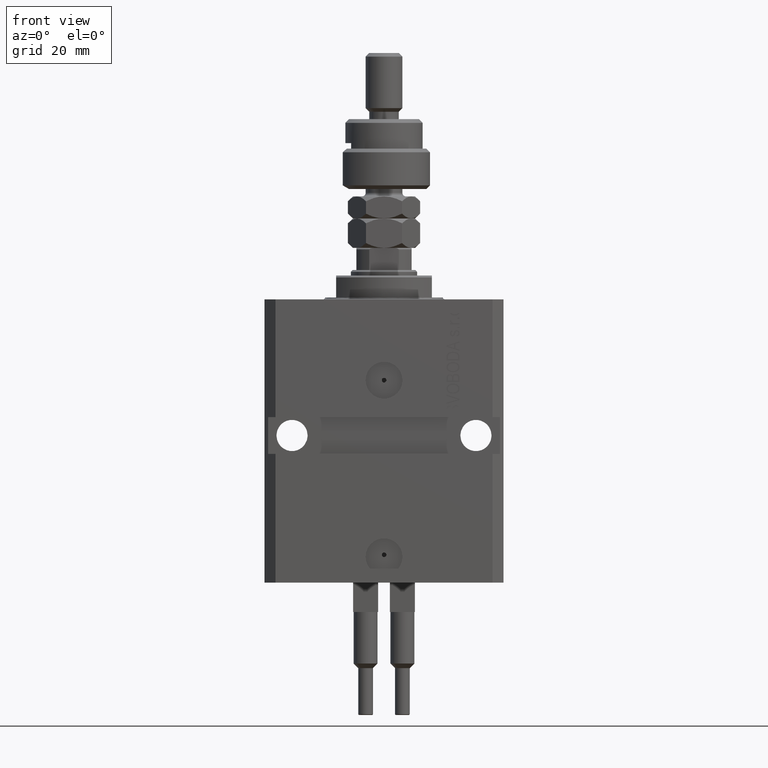
[diagram: clean part render]
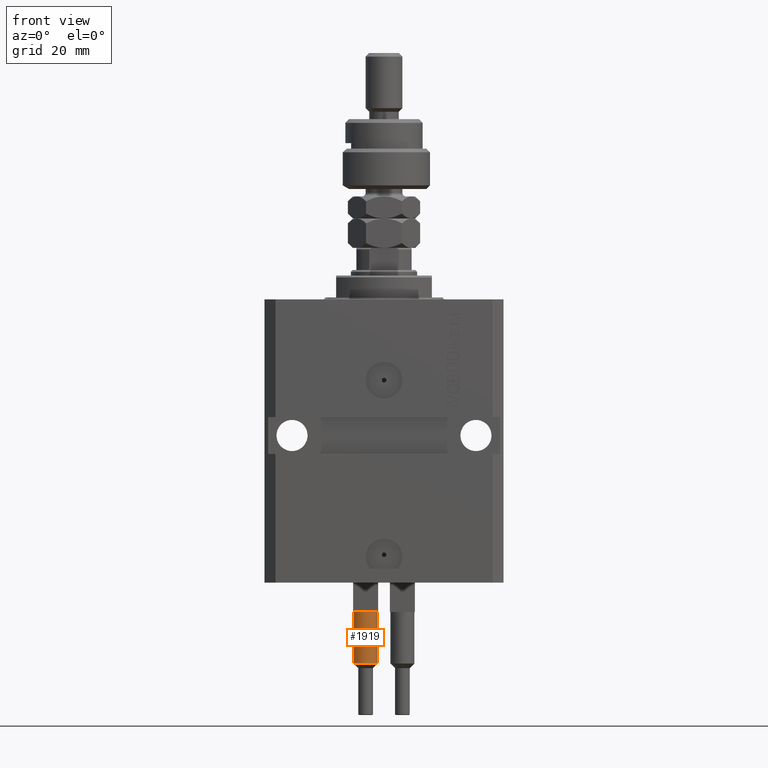
[diagram: same view with one face highlighted and labeled with its STEP entity id]
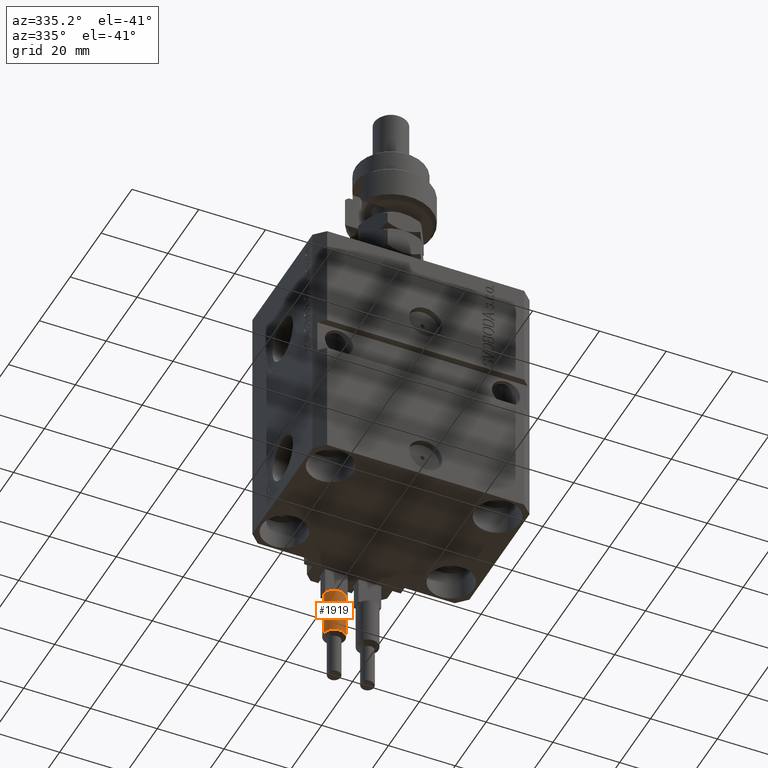
[diagram: same view with one face highlighted and labeled with its STEP entity id]
A machine part, front view. The second image highlights one B-rep face of the part: STEP entity #1919.
A second angle (auxiliary view) of the same face is appended — the face is thin or edge-on in the first view.
In plain terms, the highlighted cylindrical surface (edge-blend (fillet) strip) has radius 3.25 mm, axis along (0, 0, 1).
Its self-contained STEP definition (entity closure, byte-faithful):
#205 = CIRCLE ( 'NONE', #39600, 3.250000000000000444 ) ;
#251 = EDGE_LOOP ( 'NONE', ( #35237, #37138, #12345, #12083, #27272, #25750 ) ) ;
#694 = EDGE_CURVE ( 'NONE', #37300, #49801, #22396, .T. ) ;
#1270 = AXIS2_PLACEMENT_3D ( 'NONE', #18251, #49546, #41594 ) ;
#1919 = ADVANCED_FACE ( 'NONE', ( #41523 ), #11190, .T. ) ;
#2982 = DIRECTION ( 'NONE',  ( -1.000000000000000000, 0.000000000000000000, 0.000000000000000000 ) ) ;
#6552 = CARTESIAN_POINT ( 'NONE',  ( -2.883140648667699146, -1.500000000000000000, 40.00000000000000000 ) ) ;
#6797 = DIRECTION ( 'NONE',  ( 0.000000000000000000, 0.000000000000000000, -1.000000000000000000 ) ) ;
#6890 = LINE ( 'NONE', #38497, #12665 ) ;
#8126 = CARTESIAN_POINT ( 'NONE',  ( 0.000000000000000000, 0.000000000000000000, 40.00000000000000000 ) ) ;
#9441 = VERTEX_POINT ( 'NONE', #47124 ) ;
#10010 = VERTEX_POINT ( 'NONE', #26510 ) ;
#10664 = CARTESIAN_POINT ( 'NONE',  ( 0.000000000000000000, 0.000000000000000000, 53.99999999999998579 ) ) ;
#11190 = CYLINDRICAL_SURFACE ( 'NONE', #24908, 3.250000000000000444 ) ;
#12083 = ORIENTED_EDGE ( 'NONE', *, *, #33173, .T. ) ;
#12345 = ORIENTED_EDGE ( 'NONE', *, *, #28026, .T. ) ;
#12665 = VECTOR ( 'NONE', #45693, 1000.000000000000000 ) ;
#13572 = DIRECTION ( 'NONE',  ( -0.000000000000000000, -0.000000000000000000, -1.000000000000000000 ) ) ;
#14339 = AXIS2_PLACEMENT_3D ( 'NONE', #42557, #26167, #14835 ) ;
#14835 = DIRECTION ( 'NONE',  ( 1.000000000000000000, 0.000000000000000000, 0.000000000000000000 ) ) ;
#17228 = EDGE_CURVE ( 'NONE', #37300, #10010, #37492, .T. ) ;
#18251 = CARTESIAN_POINT ( 'NONE',  ( 0.000000000000000000, 0.000000000000000000, 40.00000000000000000 ) ) ;
#18937 = CARTESIAN_POINT ( 'NONE',  ( 0.000000000000000000, 0.000000000000000000, 56.00000000000000000 ) ) ;
#19464 = CARTESIAN_POINT ( 'NONE',  ( -3.250000000000000444, 0.000000000000000000, 53.99999999999998579 ) ) ;
#19473 = DIRECTION ( 'NONE',  ( 1.000000000000000000, 0.000000000000000000, 0.000000000000000000 ) ) ;
#22396 = CIRCLE ( 'NONE', #50249, 3.250000000000000444 ) ;
#24275 = EDGE_CURVE ( 'NONE', #25322, #9441, #205, .T. ) ;
#24908 = AXIS2_PLACEMENT_3D ( 'NONE', #18937, #37434, #2982 ) ;
#25322 = VERTEX_POINT ( 'NONE', #6552 ) ;
#25750 = ORIENTED_EDGE ( 'NONE', *, *, #31318, .T. ) ;
#26167 = DIRECTION ( 'NONE',  ( 0.000000000000000000, 0.000000000000000000, 1.000000000000000000 ) ) ;
#26510 = CARTESIAN_POINT ( 'NONE',  ( 3.250000000000000444, 3.980102097228898231E-16, 40.00000000000000000 ) ) ;
#27272 = ORIENTED_EDGE ( 'NONE', *, *, #24275, .T. ) ;
#27693 = CARTESIAN_POINT ( 'NONE',  ( -3.250000000000000444, 0.000000000000000000, 40.00000000000000000 ) ) ;
#28026 = EDGE_CURVE ( 'NONE', #49801, #29828, #6890, .T. ) ;
#29828 = VERTEX_POINT ( 'NONE', #27693 ) ;
#31318 = EDGE_CURVE ( 'NONE', #9441, #10010, #36498, .T. ) ;
#33173 = EDGE_CURVE ( 'NONE', #29828, #25322, #43092, .T. ) ;
#33374 = CARTESIAN_POINT ( 'NONE',  ( 3.250000000000000444, 3.980102097228898231E-16, 56.00000000000000000 ) ) ;
#35237 = ORIENTED_EDGE ( 'NONE', *, *, #17228, .F. ) ;
#36498 = CIRCLE ( 'NONE', #14339, 3.250000000000000444 ) ;
#37138 = ORIENTED_EDGE ( 'NONE', *, *, #694, .T. ) ;
#37300 = VERTEX_POINT ( 'NONE', #47644 ) ;
#37434 = DIRECTION ( 'NONE',  ( -0.000000000000000000, -0.000000000000000000, -1.000000000000000000 ) ) ;
#37492 = LINE ( 'NONE', #33374, #42609 ) ;
#38168 = DIRECTION ( 'NONE',  ( 1.000000000000000000, 0.000000000000000000, 0.000000000000000000 ) ) ;
#38497 = CARTESIAN_POINT ( 'NONE',  ( -3.250000000000000444, 0.000000000000000000, 56.00000000000000000 ) ) ;
#39600 = AXIS2_PLACEMENT_3D ( 'NONE', #8126, #50758, #19473 ) ;
#41523 = FACE_OUTER_BOUND ( 'NONE', #251, .T. ) ;
#41594 = DIRECTION ( 'NONE',  ( 1.000000000000000000, 0.000000000000000000, 0.000000000000000000 ) ) ;
#42557 = CARTESIAN_POINT ( 'NONE',  ( 0.000000000000000000, 0.000000000000000000, 40.00000000000000000 ) ) ;
#42609 = VECTOR ( 'NONE', #13572, 1000.000000000000000 ) ;
#43092 = CIRCLE ( 'NONE', #1270, 3.250000000000000444 ) ;
#45693 = DIRECTION ( 'NONE',  ( -0.000000000000000000, -0.000000000000000000, -1.000000000000000000 ) ) ;
#47124 = CARTESIAN_POINT ( 'NONE',  ( 2.883140648667699146, -1.500000000000000000, 40.00000000000000000 ) ) ;
#47644 = CARTESIAN_POINT ( 'NONE',  ( 3.250000000000000444, 3.980102097228898231E-16, 53.99999999999998579 ) ) ;
#49546 = DIRECTION ( 'NONE',  ( 0.000000000000000000, 0.000000000000000000, 1.000000000000000000 ) ) ;
#49801 = VERTEX_POINT ( 'NONE', #19464 ) ;
#50249 = AXIS2_PLACEMENT_3D ( 'NONE', #10664, #6797, #38168 ) ;
#50758 = DIRECTION ( 'NONE',  ( 0.000000000000000000, 0.000000000000000000, 1.000000000000000000 ) ) ;